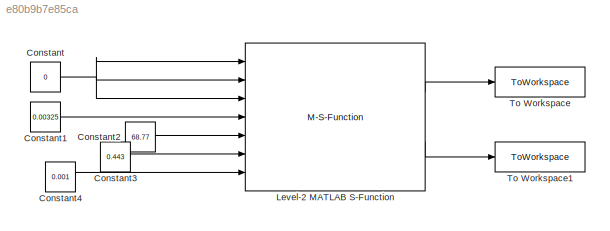
MODEL slx_e80b9b7e85ca
KIND model
CONFIG AbsTol = auto
CONFIG EnableMultiTasking = off
CONFIG FixedStep = auto
CONFIG MaxStep = auto
CONFIG MinStep = auto
CONFIG RelTol = 1e-3
CONFIG SampleTimeConstraint = Unconstrained
CONFIG Solver = VariableStepAuto
CONFIG SolverName = VariableStepAuto
CONFIG StartTime = 0.0
CONFIG StopTime = 10.0
BLOCK [Constant] Constant
  Value = 0
BLOCK [Constant] Constant1
  Value = 0.00325
BLOCK [Constant] Constant2
  Value = 68.77
BLOCK [Constant] Constant3
  Value = 0.443
BLOCK [Constant] Constant4
  Value = 0.001
BLOCK [M-S-Function] Level-2 MATLAB S-Function
  FunctionName = segment_corde
  Ports = [7, 2]
BLOCK [ToWorkspace] To Workspace
  FixptAsFi = on
  MaxDataPoints = inf
  Ports = [1]
  SampleTime = -1
  SaveFormat = Timeseries
  VariableName = y
BLOCK [ToWorkspace] To Workspace1
  FixptAsFi = on
  MaxDataPoints = inf
  Ports = [1]
  SampleTime = -1
  SaveFormat = Timeseries
  VariableName = v
LINE Constant1:1 -> Level-2 MATLAB S-Function:4
LINE Constant2:1 -> Level-2 MATLAB S-Function:5
LINE Constant3:1 -> Level-2 MATLAB S-Function:6
LINE Constant4:1 -> Level-2 MATLAB S-Function:7
NET Constant:1 -> Level-2 MATLAB S-Function:1, Level-2 MATLAB S-Function:2, Level-2 MATLAB S-Function:3
LINE Level-2 MATLAB S-Function:1 -> To Workspace:1
LINE Level-2 MATLAB S-Function:2 -> To Workspace1:1
note: NET lines group one-source signal fan-out (src -> all destinations, sorted); 1:1 wires keep LINE
